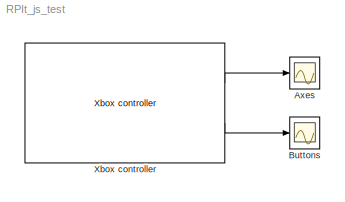
MODEL RPIt_js_test
KIND model
BLOCK [Scope] Axes
  Floating = off
  NumInputPorts = 1
  Ports = [1]
  SID = 2
  ScopeSpecificationString = C++SS(StrPVP('Location','[188, 390, 512, 629]'),StrPVP('Open','off'),MxPVP('AxesTitles',53,'struct(''axes1'',''%<SignalLabel>'')'),StrPVP('DataFormat','StructureWithTime'),StrPVP('BlockParamSampleTime','0'),StrPVP('LimitDataPoints','on'),StrPVP('Decimation','1'),StrPVP('BlockParamSampleInput','off'))
BLOCK [Scope] Buttons
  Floating = off
  NumInputPorts = 1
  Ports = [1]
  SID = 3
  ScopeSpecificationString = C++SS(StrPVP('Location','[188, 390, 512, 629]'),StrPVP('Open','off'),MxPVP('AxesTitles',53,'struct(''axes1'',''%<SignalLabel>'')'),StrPVP('SaveName','ScopeData1'),StrPVP('DataFormat','StructureWithTime'),StrPVP('BlockParamSampleTime','0'),StrPVP('LimitDataPoints','on'),StrPVP('Decimation','1'),StrPVP('BlockParamSampleInput','off'))
BLOCK [Reference] Xbox controller  REF=rpi_blkst/Xbox controller  (lib defined in mdl_5f9edbe601a8, slx_830431f926a7)
  Ports = [0, 2]
  SID = 1
  SourceBlock = rpi_blkst/Xbox controller
  SourceProductName = RPI Blockset
  SourceType = Xbox controller
  rpi_mask_ID = 0
  rpi_mask_Ts = 0.01
LINE Xbox controller:1 -> Axes:1
LINE Xbox controller:2 -> Buttons:1
